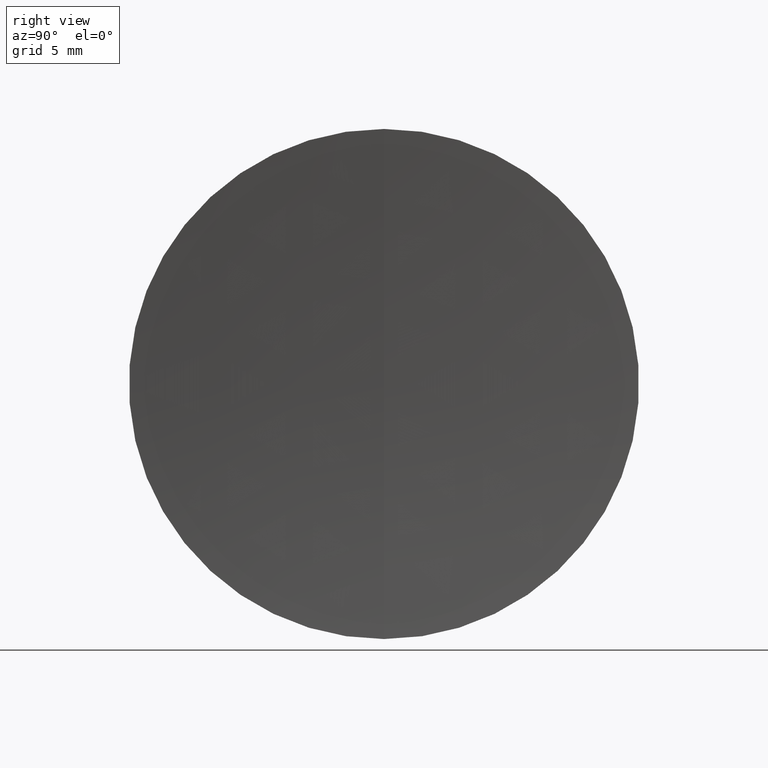
[diagram: clean part render]
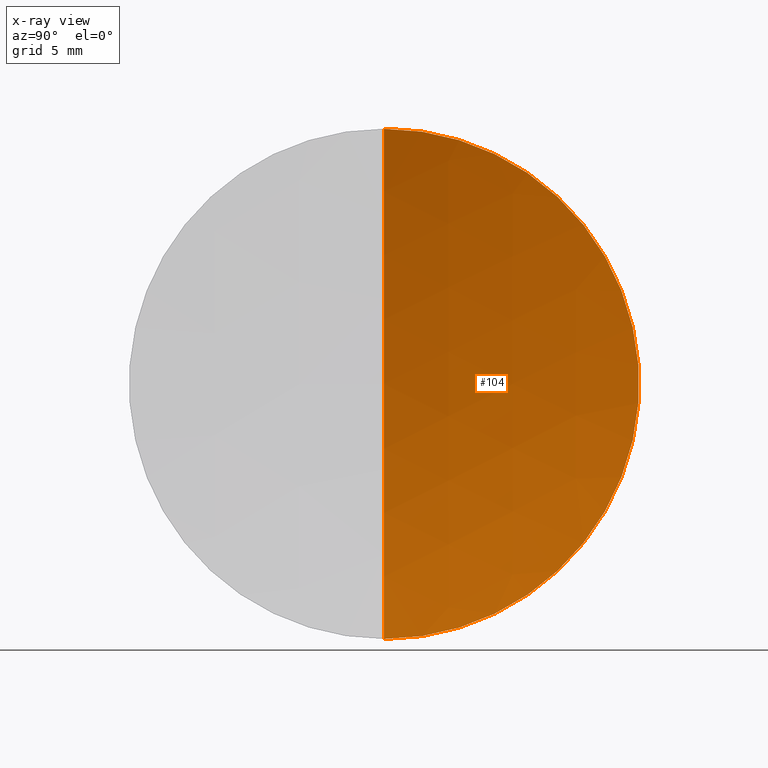
[diagram: x-ray — body ghosted, one internal face saturated and labeled with its STEP entity id]
A machine part, right view, then the same camera in x-ray: the body is ghosted and one INTERNAL B-rep face — a face not visible from any outside direction — is saturated and labeled: STEP entity #104.
In plain terms, the highlighted spherical surface has radius 69.82 mm.
Its self-contained STEP definition (entity closure, byte-faithful):
#40 = CARTESIAN_POINT ( 'NONE',  ( 318.1228114532870000, 0.0000000000000000000, 4.969613057672681700E-023 ) ) ;
#41 = DIRECTION ( 'NONE',  ( -0.0000000000000000000, -1.000000000000000000, -0.0000000000000000000 ) ) ;
#42 = EDGE_CURVE ( 'NONE', #73, #250, #43, .T. ) ;
#43 = CIRCLE ( 'NONE', #334, 20.00000000000004600 ) ;
#70 = DIRECTION ( 'NONE',  ( -0.0000000000000000000, 1.000000000000000000, 0.0000000000000000000 ) ) ;
#73 = VERTEX_POINT ( 'NONE', #180 ) ;
#78 = ORIENTED_EDGE ( 'NONE', *, *, #42, .F. ) ;
#79 = CIRCLE ( 'NONE', #91, 69.82000000000002200 ) ;
#91 = AXIS2_PLACEMENT_3D ( 'NONE', #231, #255, #94 ) ;
#94 = DIRECTION ( 'NONE',  ( 0.0000000000000000000, 1.224646799147353200E-016, -1.000000000000000000 ) ) ;
#104 = ADVANCED_FACE ( 'NONE', ( #113 ), #209, .F. ) ;
#113 = FACE_OUTER_BOUND ( 'NONE', #299, .T. ) ;
#124 = ORIENTED_EDGE ( 'NONE', *, *, #189, .F. ) ;
#135 = CARTESIAN_POINT ( 'NONE',  ( 251.2286233649336100, 2.449293598294712000E-015, -20.00000000000009200 ) ) ;
#138 = AXIS2_PLACEMENT_3D ( 'NONE', #238, #70, #317 ) ;
#174 = CARTESIAN_POINT ( 'NONE',  ( 251.2286233649336100, 0.0000000000000000000, -4.629985760850127900E-014 ) ) ;
#180 = CARTESIAN_POINT ( 'NONE',  ( 251.2286233649336100, 0.0000000000000000000, 20.00000000000000000 ) ) ;
#189 = EDGE_CURVE ( 'NONE', #250, #315, #275, .T. ) ;
#209 = SPHERICAL_SURFACE ( 'NONE', #298, 69.82000000000002200 ) ;
#217 = CARTESIAN_POINT ( 'NONE',  ( 248.3028114532870100, 0.0000000000000000000, 8.550484001342952200E-015 ) ) ;
#231 = CARTESIAN_POINT ( 'NONE',  ( 318.1228114532870000, 0.0000000000000000000, 4.969613057672681700E-023 ) ) ;
#238 = CARTESIAN_POINT ( 'NONE',  ( 318.1228114532870000, 0.0000000000000000000, 4.969613057672681700E-023 ) ) ;
#250 = VERTEX_POINT ( 'NONE', #135 ) ;
#255 = DIRECTION ( 'NONE',  ( -2.249639673992786100E-032, -1.000000000000000000, -1.224646799147353200E-016 ) ) ;
#275 = CIRCLE ( 'NONE', #138, 69.82000000000002200 ) ;
#295 = DIRECTION ( 'NONE',  ( 0.0000000000000000000, 0.0000000000000000000, 1.000000000000000000 ) ) ;
#298 = AXIS2_PLACEMENT_3D ( 'NONE', #40, #41, #344 ) ;
#299 = EDGE_LOOP ( 'NONE', ( #78, #337, #124 ) ) ;
#315 = VERTEX_POINT ( 'NONE', #217 ) ;
#317 = DIRECTION ( 'NONE',  ( 0.0000000000000000000, 0.0000000000000000000, 1.000000000000000000 ) ) ;
#327 = DIRECTION ( 'NONE',  ( -1.000000000000000000, -0.0000000000000000000, 1.836970198721029400E-016 ) ) ;
#331 = EDGE_CURVE ( 'NONE', #73, #315, #79, .T. ) ;
#334 = AXIS2_PLACEMENT_3D ( 'NONE', #174, #327, #295 ) ;
#337 = ORIENTED_EDGE ( 'NONE', *, *, #331, .T. ) ;
#344 = DIRECTION ( 'NONE',  ( 0.0000000000000000000, 0.0000000000000000000, -1.000000000000000000 ) ) ;